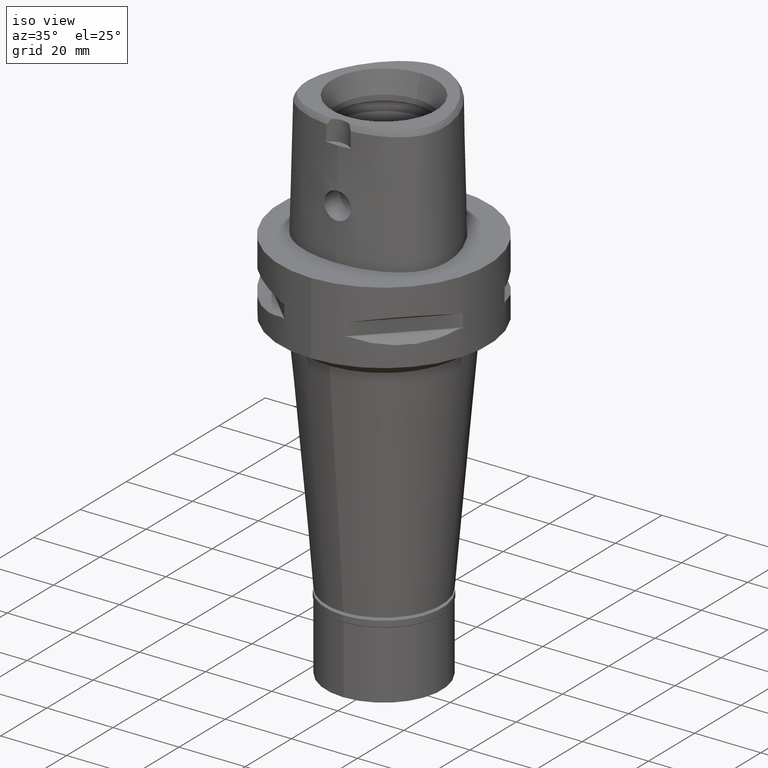
[diagram: clean part render]
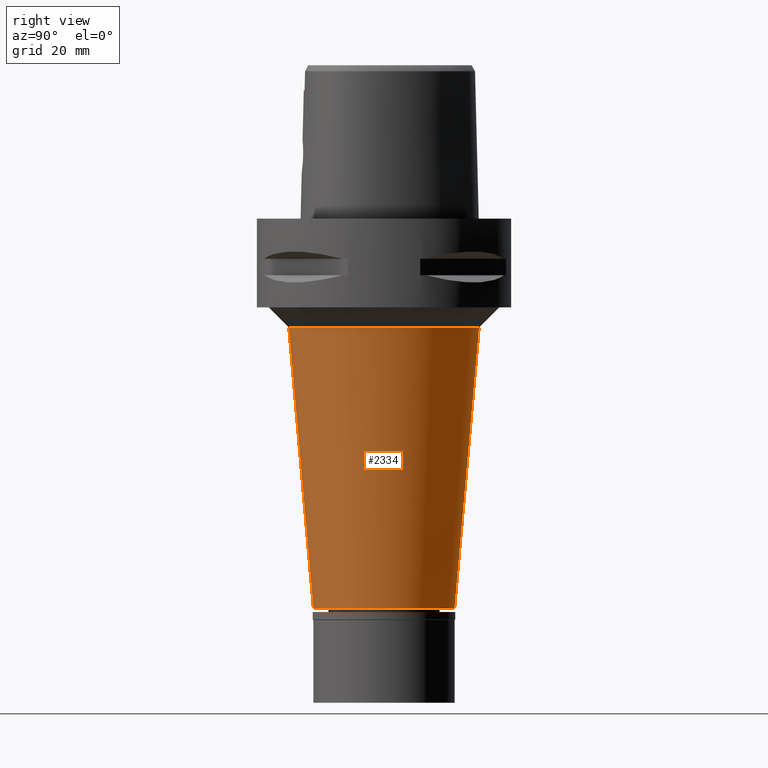
[diagram: tour spotlight — one face highlighted and labeled with its STEP entity id]
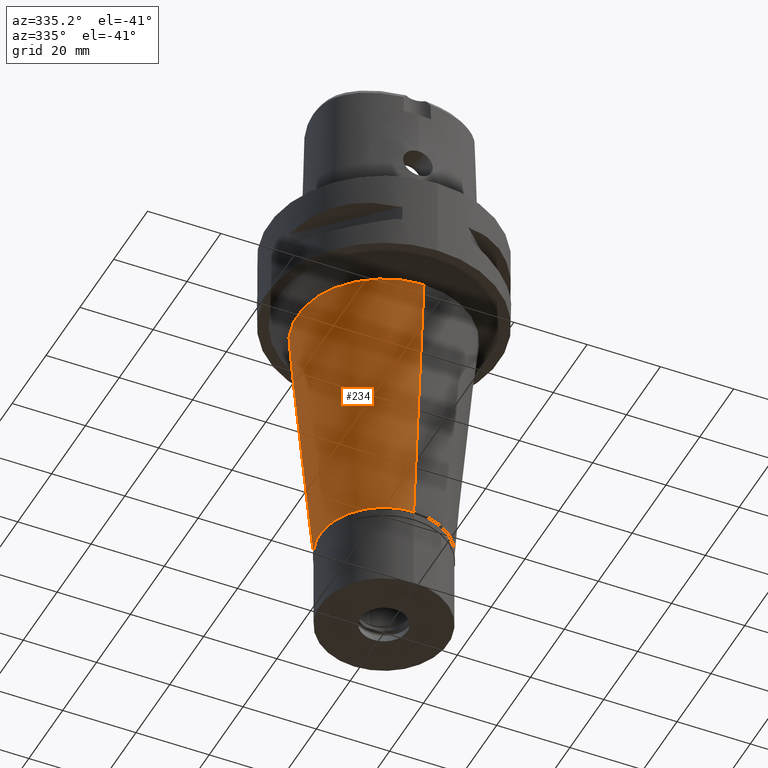
[diagram: tour spotlight — one face highlighted and labeled with its STEP entity id]
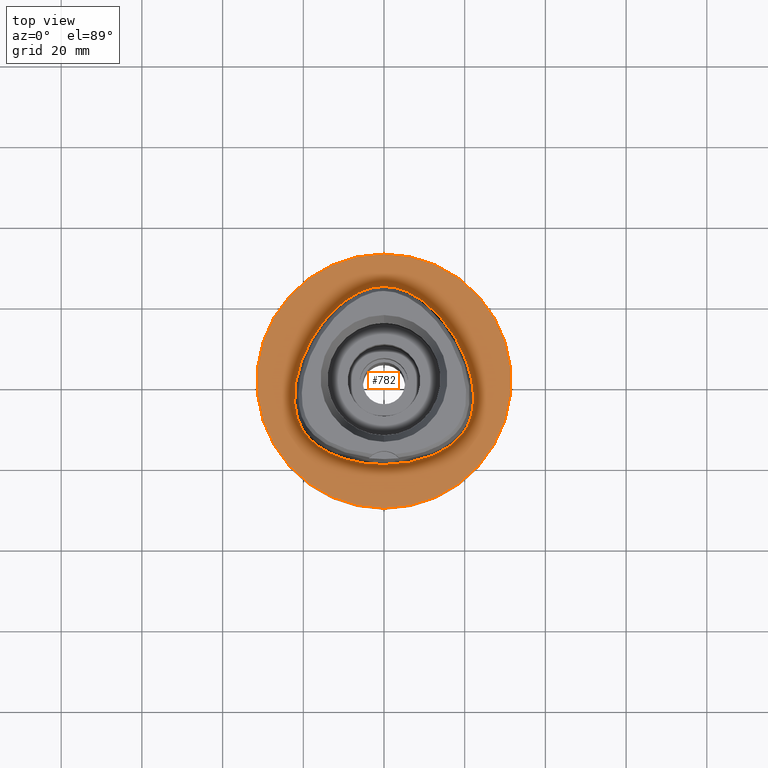
[diagram: tour spotlight — one face highlighted and labeled with its STEP entity id]
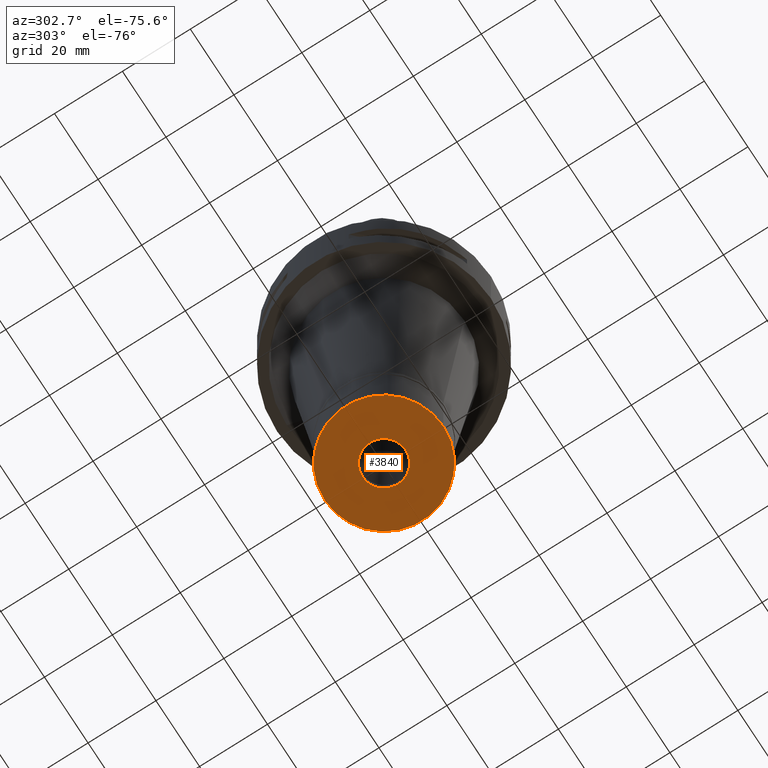
[diagram: tour spotlight — one face highlighted and labeled with its STEP entity id]
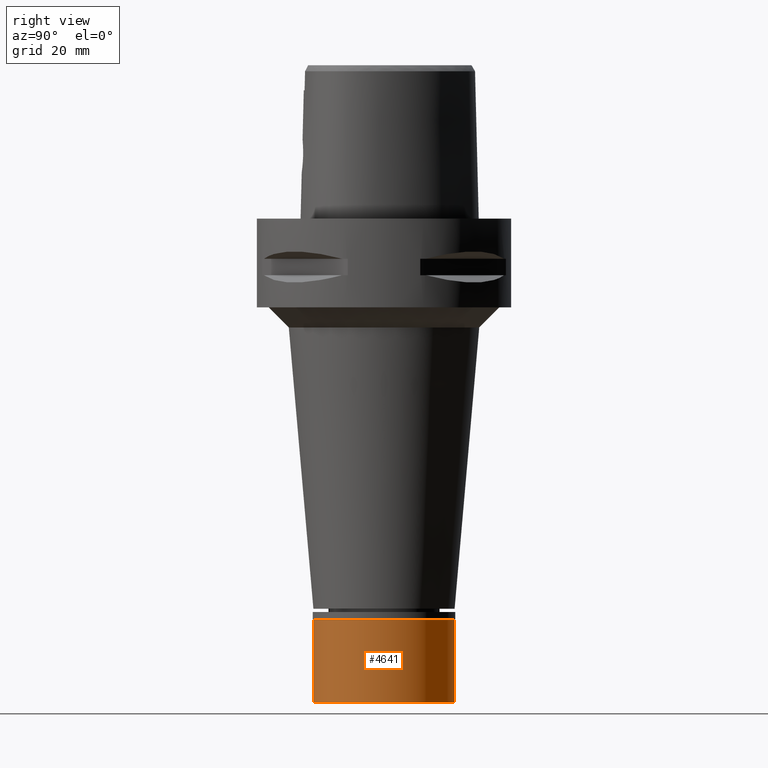
[diagram: tour spotlight — one face highlighted and labeled with its STEP entity id]
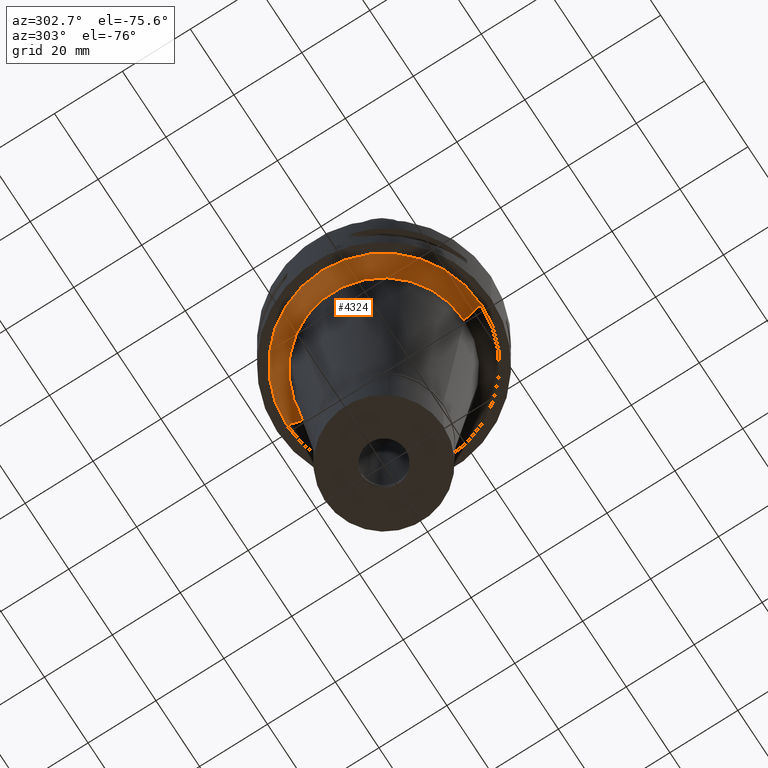
[diagram: tour spotlight — one face highlighted and labeled with its STEP entity id]
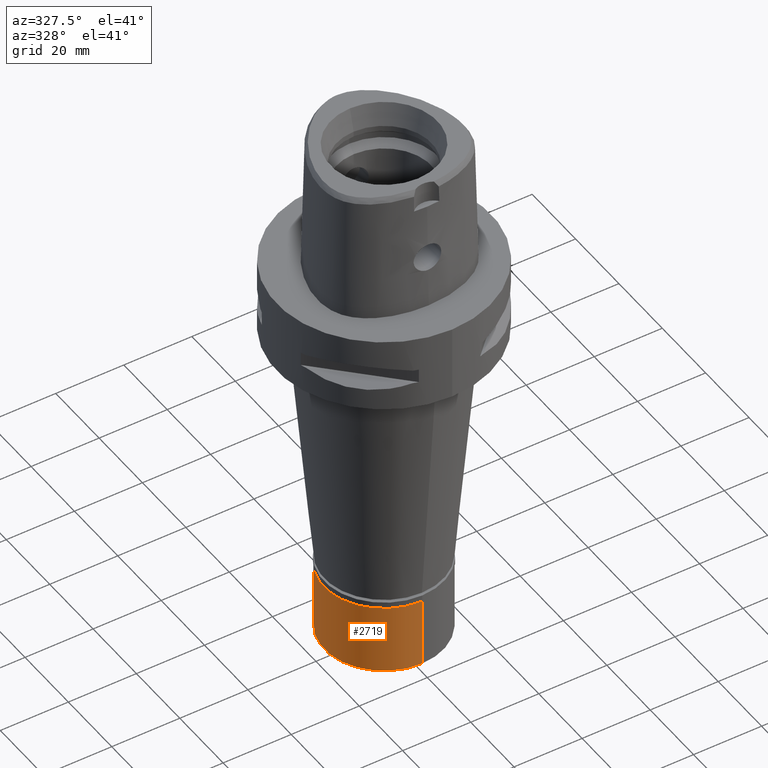
[diagram: tour spotlight — one face highlighted and labeled with its STEP entity id]
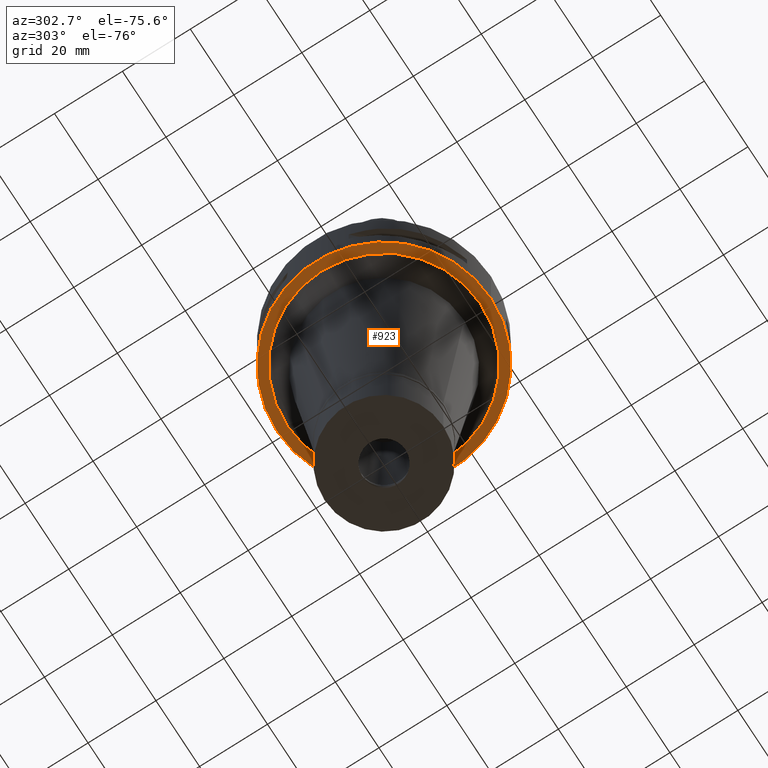
[diagram: tour spotlight — one face highlighted and labeled with its STEP entity id]
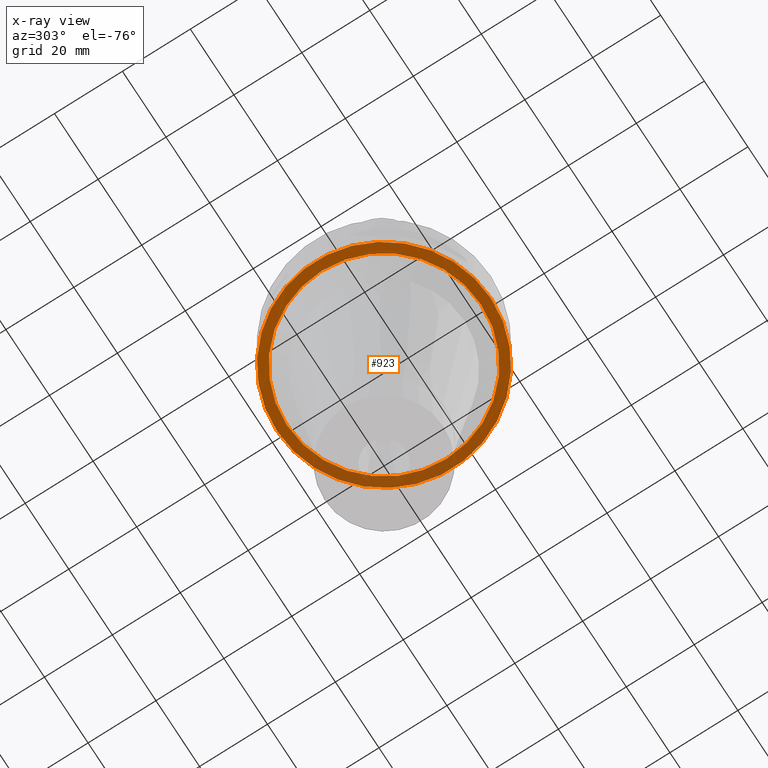
[diagram: x-ray of the same camera — body ghosted, this tour face saturated]
A machine part: a face-by-face anatomy tour. The part has 100 B-rep faces; the first image is the clean iso view, then the 8 largest visible faces are spotlighted one at a time (largest first), each with its STEP entity span.

Face 1 — right view, entity #2334. In plain terms, the highlighted conical surface has half-angle 5 deg.
Definition (entity closure, byte-faithful):
#160 = DIRECTION ( 'NONE',  ( 0.0000000000000000000, -1.000000000000000000, 0.0000000000000000000 ) ) ;
#561 = CARTESIAN_POINT ( 'NONE',  ( 0.0000000000000000000, 23.59795984775999855, -27.00000000000000000 ) ) ;
#577 = DIRECTION ( 'NONE',  ( 0.0000000000000000000, -1.000000000000000000, 0.0000000000000000000 ) ) ;
#632 = ORIENTED_EDGE ( 'NONE', *, *, #1615, .F. ) ;
#876 = VERTEX_POINT ( 'NONE', #4705 ) ;
#955 = VERTEX_POINT ( 'NONE', #4216 ) ;
#992 = VECTOR ( 'NONE', #2372, 1000.000000000000227 ) ;
#1070 = AXIS2_PLACEMENT_3D ( 'NONE', #4945, #4526, #577 ) ;
#1349 = ORIENTED_EDGE ( 'NONE', *, *, #3415, .F. ) ;
#1465 = DIRECTION ( 'NONE',  ( 0.0000000000000000000, 1.000000000000000000, 0.0000000000000000000 ) ) ;
#1492 = VERTEX_POINT ( 'NONE', #1967 ) ;
#1566 = AXIS2_PLACEMENT_3D ( 'NONE', #3270, #3723, #160 ) ;
#1615 = EDGE_CURVE ( 'NONE', #1492, #2723, #3757, .T. ) ;
#1803 = CONICAL_SURFACE ( 'NONE', #3635, 20.54897992388000105, 0.08726646259969973729 ) ;
#1909 = ORIENTED_EDGE ( 'NONE', *, *, #4636, .T. ) ;
#1959 = FACE_OUTER_BOUND ( 'NONE', #5004, .T. ) ;
#1967 = CARTESIAN_POINT ( 'NONE',  ( 0.0000000000000000000, 23.59795984775999855, -27.00000000000000000 ) ) ;
#2334 = ADVANCED_FACE ( 'NONE', ( #1959 ), #1803, .T. ) ;
#2372 = DIRECTION ( 'NONE',  ( 0.0000000000000000000, 0.08715574274768382590, -0.9961946980917432137 ) ) ;
#2462 = VECTOR ( 'NONE', #2549, 1000.000000000000227 ) ;
#2549 = DIRECTION ( 'NONE',  ( 0.0000000000000000000, -0.08715574274768382590, -0.9961946980917432137 ) ) ;
#2649 = CARTESIAN_POINT ( 'NONE',  ( 0.0000000000000000000, 0.0000000000000000000, -61.85000000000000142 ) ) ;
#2723 = VERTEX_POINT ( 'NONE', #5031 ) ;
#3270 = CARTESIAN_POINT ( 'NONE',  ( 0.0000000000000000000, 0.0000000000000000000, -96.69999999999998863 ) ) ;
#3415 = EDGE_CURVE ( 'NONE', #955, #1492, #3791, .T. ) ;
#3635 = AXIS2_PLACEMENT_3D ( 'NONE', #2649, #4255, #1465 ) ;
#3723 = DIRECTION ( 'NONE',  ( 0.0000000000000000000, 0.0000000000000000000, 1.000000000000000000 ) ) ;
#3757 = LINE ( 'NONE', #561, #2462 ) ;
#3791 = CIRCLE ( 'NONE', #1070, 23.59795984775999855 ) ;
#3806 = CIRCLE ( 'NONE', #1566, 17.50000000000000000 ) ;
#4216 = CARTESIAN_POINT ( 'NONE',  ( 0.0000000000000000000, -23.59795984775999855, -27.00000000000000000 ) ) ;
#4255 = DIRECTION ( 'NONE',  ( 0.0000000000000000000, 0.0000000000000000000, 1.000000000000000000 ) ) ;
#4312 = ORIENTED_EDGE ( 'NONE', *, *, #4336, .T. ) ;
#4336 = EDGE_CURVE ( 'NONE', #955, #876, #5091, .T. ) ;
#4526 = DIRECTION ( 'NONE',  ( 0.0000000000000000000, 0.0000000000000000000, 1.000000000000000000 ) ) ;
#4636 = EDGE_CURVE ( 'NONE', #876, #2723, #3806, .T. ) ;
#4705 = CARTESIAN_POINT ( 'NONE',  ( 0.0000000000000000000, -17.50000000000000000, -96.69999999999998863 ) ) ;
#4731 = CARTESIAN_POINT ( 'NONE',  ( 0.0000000000000000000, -23.59795984775999855, -27.00000000000000000 ) ) ;
#4945 = CARTESIAN_POINT ( 'NONE',  ( 0.0000000000000000000, 0.0000000000000000000, -27.00000000000000000 ) ) ;
#5004 = EDGE_LOOP ( 'NONE', ( #1349, #4312, #1909, #632 ) ) ;
#5031 = CARTESIAN_POINT ( 'NONE',  ( 0.0000000000000000000, 17.50000000000000000, -96.69999999999998863 ) ) ;
#5091 = LINE ( 'NONE', #4731, #992 ) ;

Face 2 — auxiliary view, entity #234. In plain terms, the highlighted conical surface has half-angle 5 deg.
Definition (entity closure, byte-faithful):
#4 = ORIENTED_EDGE ( 'NONE', *, *, #1615, .T. ) ;
#79 = CARTESIAN_POINT ( 'NONE',  ( 0.0000000000000000000, 0.0000000000000000000, -96.69999999999998863 ) ) ;
#234 = ADVANCED_FACE ( 'NONE', ( #1254 ), #4652, .T. ) ;
#253 = ORIENTED_EDGE ( 'NONE', *, *, #342, .T. ) ;
#259 = AXIS2_PLACEMENT_3D ( 'NONE', #4378, #1277, #389 ) ;
#342 = EDGE_CURVE ( 'NONE', #955, #1492, #3918, .T. ) ;
#389 = DIRECTION ( 'NONE',  ( 0.0000000000000000000, 1.000000000000000000, 0.0000000000000000000 ) ) ;
#561 = CARTESIAN_POINT ( 'NONE',  ( 0.0000000000000000000, 23.59795984775999855, -27.00000000000000000 ) ) ;
#594 = ORIENTED_EDGE ( 'NONE', *, *, #4336, .F. ) ;
#679 = AXIS2_PLACEMENT_3D ( 'NONE', #2767, #2390, #3975 ) ;
#876 = VERTEX_POINT ( 'NONE', #4705 ) ;
#895 = AXIS2_PLACEMENT_3D ( 'NONE', #79, #2458, #1619 ) ;
#955 = VERTEX_POINT ( 'NONE', #4216 ) ;
#992 = VECTOR ( 'NONE', #2372, 1000.000000000000227 ) ;
#1254 = FACE_OUTER_BOUND ( 'NONE', #1257, .T. ) ;
#1257 = EDGE_LOOP ( 'NONE', ( #3076, #594, #253, #4 ) ) ;
#1277 = DIRECTION ( 'NONE',  ( 0.0000000000000000000, 0.0000000000000000000, 1.000000000000000000 ) ) ;
#1492 = VERTEX_POINT ( 'NONE', #1967 ) ;
#1615 = EDGE_CURVE ( 'NONE', #1492, #2723, #3757, .T. ) ;
#1619 = DIRECTION ( 'NONE',  ( 0.0000000000000000000, 1.000000000000000000, 0.0000000000000000000 ) ) ;
#1967 = CARTESIAN_POINT ( 'NONE',  ( 0.0000000000000000000, 23.59795984775999855, -27.00000000000000000 ) ) ;
#2372 = DIRECTION ( 'NONE',  ( 0.0000000000000000000, 0.08715574274768382590, -0.9961946980917432137 ) ) ;
#2390 = DIRECTION ( 'NONE',  ( 0.0000000000000000000, 0.0000000000000000000, -1.000000000000000000 ) ) ;
#2458 = DIRECTION ( 'NONE',  ( 0.0000000000000000000, 0.0000000000000000000, 1.000000000000000000 ) ) ;
#2462 = VECTOR ( 'NONE', #2549, 1000.000000000000227 ) ;
#2549 = DIRECTION ( 'NONE',  ( 0.0000000000000000000, -0.08715574274768382590, -0.9961946980917432137 ) ) ;
#2723 = VERTEX_POINT ( 'NONE', #5031 ) ;
#2767 = CARTESIAN_POINT ( 'NONE',  ( 0.0000000000000000000, 0.0000000000000000000, -27.00000000000000000 ) ) ;
#3076 = ORIENTED_EDGE ( 'NONE', *, *, #3182, .T. ) ;
#3182 = EDGE_CURVE ( 'NONE', #2723, #876, #3459, .T. ) ;
#3459 = CIRCLE ( 'NONE', #895, 17.50000000000000000 ) ;
#3757 = LINE ( 'NONE', #561, #2462 ) ;
#3918 = CIRCLE ( 'NONE', #679, 23.59795984775999855 ) ;
#3975 = DIRECTION ( 'NONE',  ( 0.0000000000000000000, -1.000000000000000000, 0.0000000000000000000 ) ) ;
#4216 = CARTESIAN_POINT ( 'NONE',  ( 0.0000000000000000000, -23.59795984775999855, -27.00000000000000000 ) ) ;
#4336 = EDGE_CURVE ( 'NONE', #955, #876, #5091, .T. ) ;
#4378 = CARTESIAN_POINT ( 'NONE',  ( 0.0000000000000000000, 0.0000000000000000000, -61.85000000000000142 ) ) ;
#4652 = CONICAL_SURFACE ( 'NONE', #259, 20.54897992388000105, 0.08726646259969973729 ) ;
#4705 = CARTESIAN_POINT ( 'NONE',  ( 0.0000000000000000000, -17.50000000000000000, -96.69999999999998863 ) ) ;
#4731 = CARTESIAN_POINT ( 'NONE',  ( 0.0000000000000000000, -23.59795984775999855, -27.00000000000000000 ) ) ;
#5031 = CARTESIAN_POINT ( 'NONE',  ( 0.0000000000000000000, 17.50000000000000000, -96.69999999999998863 ) ) ;
#5091 = LINE ( 'NONE', #4731, #992 ) ;

Face 3 — top view, entity #782. In plain terms, the highlighted planar face has unit normal (0, 0, -1).
Definition (entity closure, byte-faithful):
#19 = CARTESIAN_POINT ( 'NONE',  ( 0.0000000000000000000, 0.0000000000000000000, 0.0000000000000000000 ) ) ;
#28 = EDGE_CURVE ( 'NONE', #4357, #1009, #3648, .T. ) ;
#81 = CARTESIAN_POINT ( 'NONE',  ( 18.06826693619926516, 10.43171877940945613, -2.340869023712563793E-06 ) ) ;
#104 = CARTESIAN_POINT ( 'NONE',  ( 4.711983029180999766E-11, 23.47499999999000053, 5.406786129924998921E-14 ) ) ;
#158 = CARTESIAN_POINT ( 'NONE',  ( 6.341471029610005417, -20.29812505792877531, -2.340869023712563793E-06 ) ) ;
#263 = CARTESIAN_POINT ( 'NONE',  ( -19.64947365781719668, -12.82525390565452916, 4.037040778168306254E-08 ) ) ;
#360 = B_SPLINE_CURVE_WITH_KNOTS ( 'NONE', 3,
 ( #4899, #2108, #158, #1333, #889, #3669, #4844, #4090, #2438, #2904, #2463, #552, #4821, #4453, #4020, #81, #1282, #1259, #2057, #1639, #2130, #4069, #104 ),
 .UNSPECIFIED., .F., .F.,
 ( 4, 1, 1, 1, 1, 1, 1, 1, 1, 1, 1, 1, 1, 1, 1, 1, 1, 1, 1, 1, 4 ),
 ( 0.0000000000000000000, 0.08333333333340001148, 0.1666666666667000196, 0.2083333333333000081, 0.2500000000000000000, 0.2916666666666999919, 0.3125000000000000000, 0.3333333333333000081, 0.3541666666666000163, 0.3749999999998999689, 0.4166666666666000163, 0.4583333333332000326, 0.4999999999998999689, 0.5833333333331000015, 0.6666666666664999852, 0.7499999999998000488, 0.8333333333329999704, 0.8749999999997000177, 0.9166666666664000651, 0.9583333333329999704, 1.000000000000000000 ),
 .UNSPECIFIED. ) ;
#376 = CARTESIAN_POINT ( 'NONE',  ( 4.711983029180999766E-11, 23.47499999999000053, 5.406786129924998921E-14 ) ) ;
#396 = AXIS2_PLACEMENT_3D ( 'NONE', #2337, #2998, #2231 ) ;
#403 = CIRCLE ( 'NONE', #5030, 31.50000000000000000 ) ;
#552 = CARTESIAN_POINT ( 'NONE',  ( 22.05732880139742846, -6.847636727110003818, -2.340869023712563793E-06 ) ) ;
#683 = CARTESIAN_POINT ( 'NONE',  ( -2.113823673004654236, -20.67499999898744534, 4.037040778168306254E-08 ) ) ;
#733 = CARTESIAN_POINT ( 'NONE',  ( -21.55524825912155151, -8.996025390336564342, 4.037040778168306254E-08 ) ) ;
#760 = PLANE ( 'NONE',  #396 ) ;
#782 = ADVANCED_FACE ( 'NONE', ( #2718, #4302 ), #760, .F. ) ;
#811 = EDGE_LOOP ( 'NONE', ( #5064, #2329 ) ) ;
#889 = CARTESIAN_POINT ( 'NONE',  ( 14.67337967325132908, -17.21410161350732082, -2.340869023712563793E-06 ) ) ;
#1009 = VERTEX_POINT ( 'NONE', #4550 ) ;
#1082 = EDGE_LOOP ( 'NONE', ( #1519, #3407 ) ) ;
#1259 = CARTESIAN_POINT ( 'NONE',  ( 10.74572894842425441, 19.17433598256371141, -2.340869023712563793E-06 ) ) ;
#1282 = CARTESIAN_POINT ( 'NONE',  ( 14.40795643454458386, 15.64093753797241426, -2.340869023712563793E-06 ) ) ;
#1304 = VERTEX_POINT ( 'NONE', #2136 ) ;
#1333 = CARTESIAN_POINT ( 'NONE',  ( 11.23259758738402070, -18.89324224279648234, -2.340869023712563793E-06 ) ) ;
#1388 = VERTEX_POINT ( 'NONE', #4227 ) ;
#1457 = CARTESIAN_POINT ( 'NONE',  ( -11.23259756692843681, -18.89324218655475818, 4.037040778168306254E-08 ) ) ;
#1519 = ORIENTED_EDGE ( 'NONE', *, *, #4714, .F. ) ;
#1537 = CARTESIAN_POINT ( 'NONE',  ( -7.571159433839683039, 21.31457031162646132, 4.037040778168306254E-08 ) ) ;
#1564 = CARTESIAN_POINT ( 'NONE',  ( 4.711983029180999766E-11, 23.47499999999000053, 5.406786129924998921E-14 ) ) ;
#1639 = CARTESIAN_POINT ( 'NONE',  ( 5.098437039127393433, 22.52602544519114147, -2.340869023712563793E-06 ) ) ;
#1943 = EDGE_CURVE ( 'NONE', #1388, #1304, #403, .T. ) ;
#1953 = CARTESIAN_POINT ( 'NONE',  ( -5.098437016906504304, 22.52602538968983126, 4.037040778168306254E-08 ) ) ;
#2057 = CARTESIAN_POINT ( 'NONE',  ( 7.571159463999694417, 21.31457036315773124, -2.340869023712563793E-06 ) ) ;
#2108 = CARTESIAN_POINT ( 'NONE',  ( 2.113823676545362851, -20.67500005851327671, -2.340869023712563369E-06 ) ) ;
#2111 = DIRECTION ( 'NONE',  ( 0.0000000000000000000, 0.0000000000000000000, -1.000000000000000000 ) ) ;
#2130 = CARTESIAN_POINT ( 'NONE',  ( 2.564517738985089945, 23.29328130762672089, -2.340869023712563793E-06 ) ) ;
#2136 = CARTESIAN_POINT ( 'NONE',  ( 0.0000000000000000000, 31.50000000000000000, 0.0000000000000000000 ) ) ;
#2162 = CARTESIAN_POINT ( 'NONE',  ( 0.0000000000000000000, 0.0000000000000000000, 0.0000000000000000000 ) ) ;
#2231 = DIRECTION ( 'NONE',  ( 0.0000000000000000000, -1.000000000000000000, 0.0000000000000000000 ) ) ;
#2238 = CARTESIAN_POINT ( 'NONE',  ( -20.93173252118929284, -10.60431640584759982, 4.037040778168306254E-08 ) ) ;
#2285 = CARTESIAN_POINT ( 'NONE',  ( -0.8548392422316272166, 23.47499999899499556, 4.037040778168306916E-08 ) ) ;
#2300 = DIRECTION ( 'NONE',  ( 0.0000000000000000000, -1.000000000000000000, 0.0000000000000000000 ) ) ;
#2314 = CARTESIAN_POINT ( 'NONE',  ( -18.56841065068974217, -14.16937988211684463, 4.037040778168306254E-08 ) ) ;
#2329 = ORIENTED_EDGE ( 'NONE', *, *, #3832, .F. ) ;
#2337 = CARTESIAN_POINT ( 'NONE',  ( 0.0000000000000000000, 0.0000000000000000000, 0.0000000000000000000 ) ) ;
#2341 = CARTESIAN_POINT ( 'NONE',  ( -10.74572890993840701, 19.17433593672402026, 4.037040778168306254E-08 ) ) ;
#2438 = CARTESIAN_POINT ( 'NONE',  ( 20.34961803634114474, -11.74885745118976033, -2.340869023712563793E-06 ) ) ;
#2463 = CARTESIAN_POINT ( 'NONE',  ( 21.55524831638515693, -8.996025407356324166, -2.340869023712563793E-06 ) ) ;
#2718 = FACE_OUTER_BOUND ( 'NONE', #1082, .T. ) ;
#2721 = AXIS2_PLACEMENT_3D ( 'NONE', #2162, #2111, #3696 ) ;
#2904 = CARTESIAN_POINT ( 'NONE',  ( 20.93173257567003276, -10.60431643008571889, -2.340869023712563793E-06 ) ) ;
#2998 = DIRECTION ( 'NONE',  ( 0.0000000000000000000, 0.0000000000000000000, -1.000000000000000000 ) ) ;
#3407 = ORIENTED_EDGE ( 'NONE', *, *, #1943, .F. ) ;
#3429 = CARTESIAN_POINT ( 'NONE',  ( -14.67337964369453296, -17.21410156161879357, 4.037040778168306254E-08 ) ) ;
#3473 = DIRECTION ( 'NONE',  ( 0.0000000000000000000, 0.0000000000000000000, -1.000000000000000000 ) ) ;
#3486 = CARTESIAN_POINT ( 'NONE',  ( -22.24453907753402149, -4.100468750005525465, 4.037040778168306254E-08 ) ) ;
#3530 = CARTESIAN_POINT ( 'NONE',  ( -8.195305634298999699E-12, -20.67499999999999716, 5.695444116326998779E-14 ) ) ;
#3648 = B_SPLINE_CURVE_WITH_KNOTS ( 'NONE', 3,
 ( #1564, #2285, #3852, #1953, #1537, #2341, #4198, #4248, #5000, #3907, #3486, #4668, #733, #2238, #5083, #263, #2314, #4695, #3429, #1457, #4225, #683, #3530 ),
 .UNSPECIFIED., .F., .F.,
 ( 4, 1, 1, 1, 1, 1, 1, 1, 1, 1, 1, 1, 1, 1, 1, 1, 1, 1, 1, 1, 4 ),
 ( 0.0000000000000000000, 0.04166666666739000241, 0.08333333333401000964, 0.1250000000005999923, 0.1666666666673000119, 0.2500000000004999889, 0.3333333333337000215, 0.4166666666670000296, 0.5000000000002999823, 0.5416666666668999985, 0.5833333333335000148, 0.6250000000001000311, 0.6458333333333999837, 0.6666666666667999674, 0.6875000000001000311, 0.7083333333333999837, 0.7500000000000000000, 0.7916666666667000474, 0.8333333333332000326, 0.9166666666664999852, 1.000000000000000000 ),
 .UNSPECIFIED. ) ;
#3669 = CARTESIAN_POINT ( 'NONE',  ( 16.95889176226191353, -15.67838871807612122, -2.340869023712563793E-06 ) ) ;
#3696 = DIRECTION ( 'NONE',  ( 0.0000000000000000000, 1.000000000000000000, 0.0000000000000000000 ) ) ;
#3810 = CIRCLE ( 'NONE', #2721, 31.50000000000000000 ) ;
#3832 = EDGE_CURVE ( 'NONE', #1009, #4357, #360, .T. ) ;
#3852 = CARTESIAN_POINT ( 'NONE',  ( -2.564517726749317106, 23.29328124900774100, 4.037040778168306254E-08 ) ) ;
#3907 = CARTESIAN_POINT ( 'NONE',  ( -21.97832647686781371, -0.2810937501765858326, 4.037040778168306254E-08 ) ) ;
#4020 = CARTESIAN_POINT ( 'NONE',  ( 20.74942746415953465, 4.657187519953368771, -2.340869023712563793E-06 ) ) ;
#4069 = CARTESIAN_POINT ( 'NONE',  ( 0.8548392464551050063, 23.47500005852212723, -2.340869023712563793E-06 ) ) ;
#4090 = CARTESIAN_POINT ( 'NONE',  ( 19.64947370605709054, -12.82525394071629776, -2.340869023712563793E-06 ) ) ;
#4198 = CARTESIAN_POINT ( 'NONE',  ( -14.40795638880438467, 15.64093749934128397, 4.037040778168306254E-08 ) ) ;
#4225 = CARTESIAN_POINT ( 'NONE',  ( -6.341471019032020706, -20.29812499900606326, 4.037040778168306254E-08 ) ) ;
#4227 = CARTESIAN_POINT ( 'NONE',  ( 0.0000000000000000000, -31.50000000000000000, 0.0000000000000000000 ) ) ;
#4248 = CARTESIAN_POINT ( 'NONE',  ( -18.06826688439351258, 10.43171874949207378, 4.037040778168306254E-08 ) ) ;
#4302 = FACE_BOUND ( 'NONE', #811, .T. ) ;
#4357 = VERTEX_POINT ( 'NONE', #376 ) ;
#4453 = CARTESIAN_POINT ( 'NONE',  ( 21.97832653580970685, -0.2810937397616486977, -2.340869023712563793E-06 ) ) ;
#4550 = CARTESIAN_POINT ( 'NONE',  ( -8.195305634298999699E-12, -20.67499999999999716, 5.695444116326998779E-14 ) ) ;
#4668 = CARTESIAN_POINT ( 'NONE',  ( -22.05732874222135109, -6.847636718605737194, 4.037040778168306254E-08 ) ) ;
#4695 = CARTESIAN_POINT ( 'NONE',  ( -16.95889172530714006, -15.67838867107149881, 4.037040778168306254E-08 ) ) ;
#4714 = EDGE_CURVE ( 'NONE', #1304, #1388, #3810, .T. ) ;
#4821 = CARTESIAN_POINT ( 'NONE',  ( 22.24453913725280430, -4.100468749656040579, -2.340869023712563793E-06 ) ) ;
#4844 = CARTESIAN_POINT ( 'NONE',  ( 18.56841069404890021, -14.16937992319170192, -2.340869023712563793E-06 ) ) ;
#4899 = CARTESIAN_POINT ( 'NONE',  ( -8.195305634298999699E-12, -20.67499999999999716, 5.695444116326998779E-14 ) ) ;
#5000 = CARTESIAN_POINT ( 'NONE',  ( -20.74942740784132766, 4.657187499655770502, 4.037040778168306254E-08 ) ) ;
#5030 = AXIS2_PLACEMENT_3D ( 'NONE', #19, #3473, #2300 ) ;
#5064 = ORIENTED_EDGE ( 'NONE', *, *, #28, .F. ) ;
#5083 = CARTESIAN_POINT ( 'NONE',  ( -20.34961798469859673, -11.74885742136693523, 4.037040778168306254E-08 ) ) ;

Face 4 — auxiliary view, entity #3840. In plain terms, the highlighted planar face has unit normal (0, 0, -1).
Definition (entity closure, byte-faithful):
#151 = CIRCLE ( 'NONE', #491, 17.50000000000000000 ) ;
#165 = ORIENTED_EDGE ( 'NONE', *, *, #4223, .F. ) ;
#491 = AXIS2_PLACEMENT_3D ( 'NONE', #2911, #4486, #954 ) ;
#494 = EDGE_CURVE ( 'NONE', #3795, #1434, #2622, .T. ) ;
#504 = FACE_OUTER_BOUND ( 'NONE', #1699, .T. ) ;
#550 = CARTESIAN_POINT ( 'NONE',  ( 0.0000000000000000000, 0.0000000000000000000, -22.50000000000000000 ) ) ;
#954 = DIRECTION ( 'NONE',  ( 0.0000000000000000000, 1.000000000000000000, 0.0000000000000000000 ) ) ;
#988 = AXIS2_PLACEMENT_3D ( 'NONE', #550, #2128, #4144 ) ;
#1037 = CARTESIAN_POINT ( 'NONE',  ( 0.0000000000000000000, 6.349999999998999556, -22.50000000000000000 ) ) ;
#1191 = DIRECTION ( 'NONE',  ( 0.0000000000000000000, 0.0000000000000000000, -1.000000000000000000 ) ) ;
#1298 = CARTESIAN_POINT ( 'NONE',  ( 0.0000000000000000000, 0.0000000000000000000, -22.50000000000000000 ) ) ;
#1434 = VERTEX_POINT ( 'NONE', #2683 ) ;
#1473 = AXIS2_PLACEMENT_3D ( 'NONE', #1568, #1191, #2749 ) ;
#1480 = AXIS2_PLACEMENT_3D ( 'NONE', #1298, #1738, #2021 ) ;
#1568 = CARTESIAN_POINT ( 'NONE',  ( 0.0000000000000000000, 0.0000000000000000000, -22.50000000000000000 ) ) ;
#1691 = PLANE ( 'NONE',  #3465 ) ;
#1699 = EDGE_LOOP ( 'NONE', ( #165, #3985 ) ) ;
#1738 = DIRECTION ( 'NONE',  ( 0.0000000000000000000, 0.0000000000000000000, -1.000000000000000000 ) ) ;
#1859 = EDGE_CURVE ( 'NONE', #2823, #2133, #5115, .T. ) ;
#1876 = ORIENTED_EDGE ( 'NONE', *, *, #1859, .F. ) ;
#2021 = DIRECTION ( 'NONE',  ( 0.0000000000000000000, -1.000000000000000000, 0.0000000000000000000 ) ) ;
#2128 = DIRECTION ( 'NONE',  ( 0.0000000000000000000, 0.0000000000000000000, 1.000000000000000000 ) ) ;
#2133 = VERTEX_POINT ( 'NONE', #1037 ) ;
#2416 = DIRECTION ( 'NONE',  ( 0.0000000000000000000, -1.000000000000000000, 0.0000000000000000000 ) ) ;
#2620 = CIRCLE ( 'NONE', #1473, 6.349999999998999556 ) ;
#2622 = CIRCLE ( 'NONE', #988, 17.50000000000000000 ) ;
#2683 = CARTESIAN_POINT ( 'NONE',  ( 0.0000000000000000000, 17.50000000000000000, -22.50000000000000000 ) ) ;
#2749 = DIRECTION ( 'NONE',  ( 0.0000000000000000000, 1.000000000000000000, 0.0000000000000000000 ) ) ;
#2823 = VERTEX_POINT ( 'NONE', #5003 ) ;
#2875 = DIRECTION ( 'NONE',  ( 0.0000000000000000000, 0.0000000000000000000, -1.000000000000000000 ) ) ;
#2911 = CARTESIAN_POINT ( 'NONE',  ( 0.0000000000000000000, 0.0000000000000000000, -22.50000000000000000 ) ) ;
#3092 = EDGE_CURVE ( 'NONE', #2133, #2823, #2620, .T. ) ;
#3193 = ORIENTED_EDGE ( 'NONE', *, *, #3092, .F. ) ;
#3465 = AXIS2_PLACEMENT_3D ( 'NONE', #3999, #2875, #2416 ) ;
#3644 = FACE_BOUND ( 'NONE', #4441, .T. ) ;
#3795 = VERTEX_POINT ( 'NONE', #4403 ) ;
#3840 = ADVANCED_FACE ( 'NONE', ( #504, #3644 ), #1691, .T. ) ;
#3985 = ORIENTED_EDGE ( 'NONE', *, *, #494, .F. ) ;
#3999 = CARTESIAN_POINT ( 'NONE',  ( 0.0000000000000000000, 0.0000000000000000000, -22.50000000000000000 ) ) ;
#4144 = DIRECTION ( 'NONE',  ( 0.0000000000000000000, -1.000000000000000000, 0.0000000000000000000 ) ) ;
#4223 = EDGE_CURVE ( 'NONE', #1434, #3795, #151, .T. ) ;
#4403 = CARTESIAN_POINT ( 'NONE',  ( 0.0000000000000000000, -17.50000000000000000, -22.50000000000000000 ) ) ;
#4441 = EDGE_LOOP ( 'NONE', ( #3193, #1876 ) ) ;
#4486 = DIRECTION ( 'NONE',  ( 0.0000000000000000000, 0.0000000000000000000, 1.000000000000000000 ) ) ;
#5003 = CARTESIAN_POINT ( 'NONE',  ( 0.0000000000000000000, -6.349999999998999556, -22.50000000000000000 ) ) ;
#5115 = CIRCLE ( 'NONE', #1480, 6.349999999998999556 ) ;

Face 5 — right view, entity #4641. In plain terms, the highlighted cylindrical surface (partial cylindrical patch) has radius 17.5 mm, axis along (0, 0, -1).
Definition (entity closure, byte-faithful):
#106 = DIRECTION ( 'NONE',  ( 0.0000000000000000000, -1.000000000000000000, 0.0000000000000000000 ) ) ;
#163 = CARTESIAN_POINT ( 'NONE',  ( 0.0000000000000000000, 17.50000000000000000, -2.000000000000000000 ) ) ;
#350 = VERTEX_POINT ( 'NONE', #3584 ) ;
#494 = EDGE_CURVE ( 'NONE', #3795, #1434, #2622, .T. ) ;
#550 = CARTESIAN_POINT ( 'NONE',  ( 0.0000000000000000000, 0.0000000000000000000, -22.50000000000000000 ) ) ;
#736 = VECTOR ( 'NONE', #4962, 1000.000000000000000 ) ;
#791 = LINE ( 'NONE', #5089, #3624 ) ;
#988 = AXIS2_PLACEMENT_3D ( 'NONE', #550, #2128, #4144 ) ;
#1014 = LINE ( 'NONE', #4984, #736 ) ;
#1261 = DIRECTION ( 'NONE',  ( 0.0000000000000000000, 1.000000000000000000, 0.0000000000000000000 ) ) ;
#1315 = VERTEX_POINT ( 'NONE', #163 ) ;
#1372 = ORIENTED_EDGE ( 'NONE', *, *, #2577, .T. ) ;
#1434 = VERTEX_POINT ( 'NONE', #2683 ) ;
#2080 = EDGE_CURVE ( 'NONE', #350, #3795, #1014, .T. ) ;
#2128 = DIRECTION ( 'NONE',  ( 0.0000000000000000000, 0.0000000000000000000, 1.000000000000000000 ) ) ;
#2203 = EDGE_CURVE ( 'NONE', #1315, #1434, #791, .T. ) ;
#2216 = EDGE_LOOP ( 'NONE', ( #1372, #4424, #5042, #4958 ) ) ;
#2496 = CARTESIAN_POINT ( 'NONE',  ( 0.0000000000000000000, 0.0000000000000000000, -2.000000000000000000 ) ) ;
#2577 = EDGE_CURVE ( 'NONE', #1315, #350, #3959, .T. ) ;
#2622 = CIRCLE ( 'NONE', #988, 17.50000000000000000 ) ;
#2683 = CARTESIAN_POINT ( 'NONE',  ( 0.0000000000000000000, 17.50000000000000000, -22.50000000000000000 ) ) ;
#2879 = AXIS2_PLACEMENT_3D ( 'NONE', #4481, #3247, #106 ) ;
#3247 = DIRECTION ( 'NONE',  ( 0.0000000000000000000, 0.0000000000000000000, -1.000000000000000000 ) ) ;
#3385 = AXIS2_PLACEMENT_3D ( 'NONE', #2496, #4800, #1261 ) ;
#3584 = CARTESIAN_POINT ( 'NONE',  ( 0.0000000000000000000, -17.50000000000000000, -2.000000000000000000 ) ) ;
#3624 = VECTOR ( 'NONE', #4651, 1000.000000000000000 ) ;
#3674 = CYLINDRICAL_SURFACE ( 'NONE', #2879, 17.50000000000000000 ) ;
#3748 = FACE_OUTER_BOUND ( 'NONE', #2216, .T. ) ;
#3795 = VERTEX_POINT ( 'NONE', #4403 ) ;
#3959 = CIRCLE ( 'NONE', #3385, 17.50000000000000000 ) ;
#4144 = DIRECTION ( 'NONE',  ( 0.0000000000000000000, -1.000000000000000000, 0.0000000000000000000 ) ) ;
#4403 = CARTESIAN_POINT ( 'NONE',  ( 0.0000000000000000000, -17.50000000000000000, -22.50000000000000000 ) ) ;
#4424 = ORIENTED_EDGE ( 'NONE', *, *, #2080, .T. ) ;
#4481 = CARTESIAN_POINT ( 'NONE',  ( 0.0000000000000000000, 0.0000000000000000000, 0.0000000000000000000 ) ) ;
#4641 = ADVANCED_FACE ( 'NONE', ( #3748 ), #3674, .T. ) ;
#4651 = DIRECTION ( 'NONE',  ( 0.0000000000000000000, 0.0000000000000000000, -1.000000000000000000 ) ) ;
#4800 = DIRECTION ( 'NONE',  ( 0.0000000000000000000, 0.0000000000000000000, -1.000000000000000000 ) ) ;
#4958 = ORIENTED_EDGE ( 'NONE', *, *, #2203, .F. ) ;
#4962 = DIRECTION ( 'NONE',  ( 0.0000000000000000000, 0.0000000000000000000, -1.000000000000000000 ) ) ;
#4984 = CARTESIAN_POINT ( 'NONE',  ( 0.0000000000000000000, -17.50000000000000000, -2.000000000000000000 ) ) ;
#5042 = ORIENTED_EDGE ( 'NONE', *, *, #494, .T. ) ;
#5089 = CARTESIAN_POINT ( 'NONE',  ( 0.0000000000000000000, 17.50000000000000000, -2.000000000000000000 ) ) ;

Face 6 — auxiliary view, entity #4324. In plain terms, the highlighted conical surface has half-angle 45 deg.
Definition (entity closure, byte-faithful):
#60 = FACE_OUTER_BOUND ( 'NONE', #2673, .T. ) ;
#202 = EDGE_CURVE ( 'NONE', #1762, #2546, #2005, .T. ) ;
#311 = VECTOR ( 'NONE', #4402, 1000.000000000000000 ) ;
#342 = EDGE_CURVE ( 'NONE', #955, #1492, #3918, .T. ) ;
#475 = CARTESIAN_POINT ( 'NONE',  ( 0.0000000000000000000, 28.59795984775999855, -22.00000000000000000 ) ) ;
#679 = AXIS2_PLACEMENT_3D ( 'NONE', #2767, #2390, #3975 ) ;
#871 = DIRECTION ( 'NONE',  ( 0.0000000000000000000, 0.0000000000000000000, 1.000000000000000000 ) ) ;
#955 = VERTEX_POINT ( 'NONE', #4216 ) ;
#1079 = CONICAL_SURFACE ( 'NONE', #3303, 26.09795984776000211, 0.7853981633972997312 ) ;
#1110 = LINE ( 'NONE', #3146, #2708 ) ;
#1134 = DIRECTION ( 'NONE',  ( 0.0000000000000000000, -0.7071067811865969777, -0.7071067811864980568 ) ) ;
#1492 = VERTEX_POINT ( 'NONE', #1967 ) ;
#1648 = CARTESIAN_POINT ( 'NONE',  ( 0.0000000000000000000, 0.0000000000000000000, -24.50000000000000000 ) ) ;
#1662 = CARTESIAN_POINT ( 'NONE',  ( 0.0000000000000000000, -28.59795984775999855, -22.00000000000000000 ) ) ;
#1726 = ORIENTED_EDGE ( 'NONE', *, *, #202, .T. ) ;
#1762 = VERTEX_POINT ( 'NONE', #3051 ) ;
#1930 = ORIENTED_EDGE ( 'NONE', *, *, #3157, .F. ) ;
#1967 = CARTESIAN_POINT ( 'NONE',  ( 0.0000000000000000000, 23.59795984775999855, -27.00000000000000000 ) ) ;
#2005 = CIRCLE ( 'NONE', #3329, 28.59795984775999855 ) ;
#2082 = DIRECTION ( 'NONE',  ( 0.0000000000000000000, 0.0000000000000000000, -1.000000000000000000 ) ) ;
#2266 = ORIENTED_EDGE ( 'NONE', *, *, #2965, .T. ) ;
#2390 = DIRECTION ( 'NONE',  ( 0.0000000000000000000, 0.0000000000000000000, -1.000000000000000000 ) ) ;
#2434 = CARTESIAN_POINT ( 'NONE',  ( 0.0000000000000000000, 0.0000000000000000000, -22.00000000000000000 ) ) ;
#2445 = DIRECTION ( 'NONE',  ( 0.0000000000000000000, 1.000000000000000000, 0.0000000000000000000 ) ) ;
#2546 = VERTEX_POINT ( 'NONE', #475 ) ;
#2673 = EDGE_LOOP ( 'NONE', ( #3435, #1930, #1726, #2266 ) ) ;
#2708 = VECTOR ( 'NONE', #1134, 1000.000000000000000 ) ;
#2767 = CARTESIAN_POINT ( 'NONE',  ( 0.0000000000000000000, 0.0000000000000000000, -27.00000000000000000 ) ) ;
#2965 = EDGE_CURVE ( 'NONE', #2546, #1492, #1110, .T. ) ;
#3051 = CARTESIAN_POINT ( 'NONE',  ( 0.0000000000000000000, -28.59795984775999855, -22.00000000000000000 ) ) ;
#3146 = CARTESIAN_POINT ( 'NONE',  ( 0.0000000000000000000, 28.59795984775999855, -22.00000000000000000 ) ) ;
#3157 = EDGE_CURVE ( 'NONE', #1762, #955, #4045, .T. ) ;
#3303 = AXIS2_PLACEMENT_3D ( 'NONE', #1648, #871, #2445 ) ;
#3329 = AXIS2_PLACEMENT_3D ( 'NONE', #2434, #2082, #4791 ) ;
#3435 = ORIENTED_EDGE ( 'NONE', *, *, #342, .F. ) ;
#3918 = CIRCLE ( 'NONE', #679, 23.59795984775999855 ) ;
#3975 = DIRECTION ( 'NONE',  ( 0.0000000000000000000, -1.000000000000000000, 0.0000000000000000000 ) ) ;
#4045 = LINE ( 'NONE', #1662, #311 ) ;
#4216 = CARTESIAN_POINT ( 'NONE',  ( 0.0000000000000000000, -23.59795984775999855, -27.00000000000000000 ) ) ;
#4324 = ADVANCED_FACE ( 'NONE', ( #60 ), #1079, .T. ) ;
#4402 = DIRECTION ( 'NONE',  ( 0.0000000000000000000, 0.7071067811865969777, -0.7071067811864980568 ) ) ;
#4791 = DIRECTION ( 'NONE',  ( 0.0000000000000000000, -1.000000000000000000, 0.0000000000000000000 ) ) ;

Face 7 — auxiliary view, entity #2719. In plain terms, the highlighted cylindrical surface (partial cylindrical patch) has radius 17.5 mm, axis along (0, 0, -1).
Definition (entity closure, byte-faithful):
#151 = CIRCLE ( 'NONE', #491, 17.50000000000000000 ) ;
#163 = CARTESIAN_POINT ( 'NONE',  ( 0.0000000000000000000, 17.50000000000000000, -2.000000000000000000 ) ) ;
#350 = VERTEX_POINT ( 'NONE', #3584 ) ;
#491 = AXIS2_PLACEMENT_3D ( 'NONE', #2911, #4486, #954 ) ;
#736 = VECTOR ( 'NONE', #4962, 1000.000000000000000 ) ;
#791 = LINE ( 'NONE', #5089, #3624 ) ;
#823 = CIRCLE ( 'NONE', #2148, 17.50000000000000000 ) ;
#848 = DIRECTION ( 'NONE',  ( 0.0000000000000000000, -1.000000000000000000, 0.0000000000000000000 ) ) ;
#954 = DIRECTION ( 'NONE',  ( 0.0000000000000000000, 1.000000000000000000, 0.0000000000000000000 ) ) ;
#1014 = LINE ( 'NONE', #4984, #736 ) ;
#1085 = DIRECTION ( 'NONE',  ( 0.0000000000000000000, 0.0000000000000000000, -1.000000000000000000 ) ) ;
#1215 = ORIENTED_EDGE ( 'NONE', *, *, #2203, .T. ) ;
#1297 = EDGE_LOOP ( 'NONE', ( #4002, #3812, #4487, #1215 ) ) ;
#1315 = VERTEX_POINT ( 'NONE', #163 ) ;
#1434 = VERTEX_POINT ( 'NONE', #2683 ) ;
#2080 = EDGE_CURVE ( 'NONE', #350, #3795, #1014, .T. ) ;
#2148 = AXIS2_PLACEMENT_3D ( 'NONE', #4410, #4904, #848 ) ;
#2203 = EDGE_CURVE ( 'NONE', #1315, #1434, #791, .T. ) ;
#2568 = CYLINDRICAL_SURFACE ( 'NONE', #3137, 17.50000000000000000 ) ;
#2683 = CARTESIAN_POINT ( 'NONE',  ( 0.0000000000000000000, 17.50000000000000000, -22.50000000000000000 ) ) ;
#2719 = ADVANCED_FACE ( 'NONE', ( #4153 ), #2568, .T. ) ;
#2911 = CARTESIAN_POINT ( 'NONE',  ( 0.0000000000000000000, 0.0000000000000000000, -22.50000000000000000 ) ) ;
#3006 = DIRECTION ( 'NONE',  ( 0.0000000000000000000, -1.000000000000000000, 0.0000000000000000000 ) ) ;
#3137 = AXIS2_PLACEMENT_3D ( 'NONE', #3432, #1085, #3006 ) ;
#3432 = CARTESIAN_POINT ( 'NONE',  ( 0.0000000000000000000, 0.0000000000000000000, 0.0000000000000000000 ) ) ;
#3584 = CARTESIAN_POINT ( 'NONE',  ( 0.0000000000000000000, -17.50000000000000000, -2.000000000000000000 ) ) ;
#3624 = VECTOR ( 'NONE', #4651, 1000.000000000000000 ) ;
#3795 = VERTEX_POINT ( 'NONE', #4403 ) ;
#3812 = ORIENTED_EDGE ( 'NONE', *, *, #2080, .F. ) ;
#4002 = ORIENTED_EDGE ( 'NONE', *, *, #4223, .T. ) ;
#4153 = FACE_OUTER_BOUND ( 'NONE', #1297, .T. ) ;
#4223 = EDGE_CURVE ( 'NONE', #1434, #3795, #151, .T. ) ;
#4294 = EDGE_CURVE ( 'NONE', #350, #1315, #823, .T. ) ;
#4403 = CARTESIAN_POINT ( 'NONE',  ( 0.0000000000000000000, -17.50000000000000000, -22.50000000000000000 ) ) ;
#4410 = CARTESIAN_POINT ( 'NONE',  ( 0.0000000000000000000, 0.0000000000000000000, -2.000000000000000000 ) ) ;
#4486 = DIRECTION ( 'NONE',  ( 0.0000000000000000000, 0.0000000000000000000, 1.000000000000000000 ) ) ;
#4487 = ORIENTED_EDGE ( 'NONE', *, *, #4294, .T. ) ;
#4651 = DIRECTION ( 'NONE',  ( 0.0000000000000000000, 0.0000000000000000000, -1.000000000000000000 ) ) ;
#4904 = DIRECTION ( 'NONE',  ( 0.0000000000000000000, 0.0000000000000000000, -1.000000000000000000 ) ) ;
#4962 = DIRECTION ( 'NONE',  ( 0.0000000000000000000, 0.0000000000000000000, -1.000000000000000000 ) ) ;
#4984 = CARTESIAN_POINT ( 'NONE',  ( 0.0000000000000000000, -17.50000000000000000, -2.000000000000000000 ) ) ;
#5089 = CARTESIAN_POINT ( 'NONE',  ( 0.0000000000000000000, 17.50000000000000000, -2.000000000000000000 ) ) ;

Face 8 — auxiliary view, entity #923. An x-ray twin of the same camera follows (body ghosted, this face saturated) — the face is partly hidden behind the body. In plain terms, the highlighted planar face has unit normal (0, 0, -1).
Definition (entity closure, byte-faithful):
#202 = EDGE_CURVE ( 'NONE', #1762, #2546, #2005, .T. ) ;
#475 = CARTESIAN_POINT ( 'NONE',  ( 0.0000000000000000000, 28.59795984775999855, -22.00000000000000000 ) ) ;
#538 = ORIENTED_EDGE ( 'NONE', *, *, #3637, .F. ) ;
#566 = AXIS2_PLACEMENT_3D ( 'NONE', #2368, #4769, #2728 ) ;
#899 = EDGE_LOOP ( 'NONE', ( #4419, #2978 ) ) ;
#923 = ADVANCED_FACE ( 'NONE', ( #2350, #3494 ), #4732, .T. ) ;
#1068 = AXIS2_PLACEMENT_3D ( 'NONE', #3516, #3150, #3859 ) ;
#1139 = DIRECTION ( 'NONE',  ( 0.0000000000000000000, 0.0000000000000000000, -1.000000000000000000 ) ) ;
#1307 = CARTESIAN_POINT ( 'NONE',  ( 0.0000000000000000000, -31.50000000000000000, -22.00000000000000000 ) ) ;
#1762 = VERTEX_POINT ( 'NONE', #3051 ) ;
#1860 = DIRECTION ( 'NONE',  ( 0.0000000000000000000, -1.000000000000000000, 0.0000000000000000000 ) ) ;
#1971 = CIRCLE ( 'NONE', #1068, 31.50000000000000000 ) ;
#1981 = DIRECTION ( 'NONE',  ( 0.0000000000000000000, -1.000000000000000000, 0.0000000000000000000 ) ) ;
#2005 = CIRCLE ( 'NONE', #3329, 28.59795984775999855 ) ;
#2006 = DIRECTION ( 'NONE',  ( 0.0000000000000000000, 0.0000000000000000000, 1.000000000000000000 ) ) ;
#2082 = DIRECTION ( 'NONE',  ( 0.0000000000000000000, 0.0000000000000000000, -1.000000000000000000 ) ) ;
#2220 = AXIS2_PLACEMENT_3D ( 'NONE', #4250, #2006, #1981 ) ;
#2253 = EDGE_CURVE ( 'NONE', #4120, #2639, #1971, .T. ) ;
#2270 = CARTESIAN_POINT ( 'NONE',  ( 0.0000000000000000000, 0.0000000000000000000, -22.00000000000000000 ) ) ;
#2350 = FACE_OUTER_BOUND ( 'NONE', #899, .T. ) ;
#2368 = CARTESIAN_POINT ( 'NONE',  ( 0.0000000000000000000, 0.0000000000000000000, -22.00000000000000000 ) ) ;
#2385 = AXIS2_PLACEMENT_3D ( 'NONE', #2270, #1139, #1860 ) ;
#2434 = CARTESIAN_POINT ( 'NONE',  ( 0.0000000000000000000, 0.0000000000000000000, -22.00000000000000000 ) ) ;
#2546 = VERTEX_POINT ( 'NONE', #475 ) ;
#2639 = VERTEX_POINT ( 'NONE', #1307 ) ;
#2728 = DIRECTION ( 'NONE',  ( 0.0000000000000000000, 1.000000000000000000, 0.0000000000000000000 ) ) ;
#2785 = CIRCLE ( 'NONE', #566, 28.59795984775999855 ) ;
#2978 = ORIENTED_EDGE ( 'NONE', *, *, #2989, .F. ) ;
#2989 = EDGE_CURVE ( 'NONE', #2639, #4120, #3129, .T. ) ;
#3029 = EDGE_LOOP ( 'NONE', ( #538, #3339 ) ) ;
#3051 = CARTESIAN_POINT ( 'NONE',  ( 0.0000000000000000000, -28.59795984775999855, -22.00000000000000000 ) ) ;
#3129 = CIRCLE ( 'NONE', #2220, 31.50000000000000000 ) ;
#3150 = DIRECTION ( 'NONE',  ( 0.0000000000000000000, 0.0000000000000000000, 1.000000000000000000 ) ) ;
#3274 = CARTESIAN_POINT ( 'NONE',  ( 0.0000000000000000000, 31.50000000000000000, -22.00000000000000000 ) ) ;
#3329 = AXIS2_PLACEMENT_3D ( 'NONE', #2434, #2082, #4791 ) ;
#3339 = ORIENTED_EDGE ( 'NONE', *, *, #202, .F. ) ;
#3494 = FACE_BOUND ( 'NONE', #3029, .T. ) ;
#3516 = CARTESIAN_POINT ( 'NONE',  ( 0.0000000000000000000, 0.0000000000000000000, -22.00000000000000000 ) ) ;
#3637 = EDGE_CURVE ( 'NONE', #2546, #1762, #2785, .T. ) ;
#3859 = DIRECTION ( 'NONE',  ( 0.0000000000000000000, 1.000000000000000000, 0.0000000000000000000 ) ) ;
#4120 = VERTEX_POINT ( 'NONE', #3274 ) ;
#4250 = CARTESIAN_POINT ( 'NONE',  ( 0.0000000000000000000, 0.0000000000000000000, -22.00000000000000000 ) ) ;
#4419 = ORIENTED_EDGE ( 'NONE', *, *, #2253, .F. ) ;
#4732 = PLANE ( 'NONE',  #2385 ) ;
#4769 = DIRECTION ( 'NONE',  ( 0.0000000000000000000, 0.0000000000000000000, -1.000000000000000000 ) ) ;
#4791 = DIRECTION ( 'NONE',  ( 0.0000000000000000000, -1.000000000000000000, 0.0000000000000000000 ) ) ;